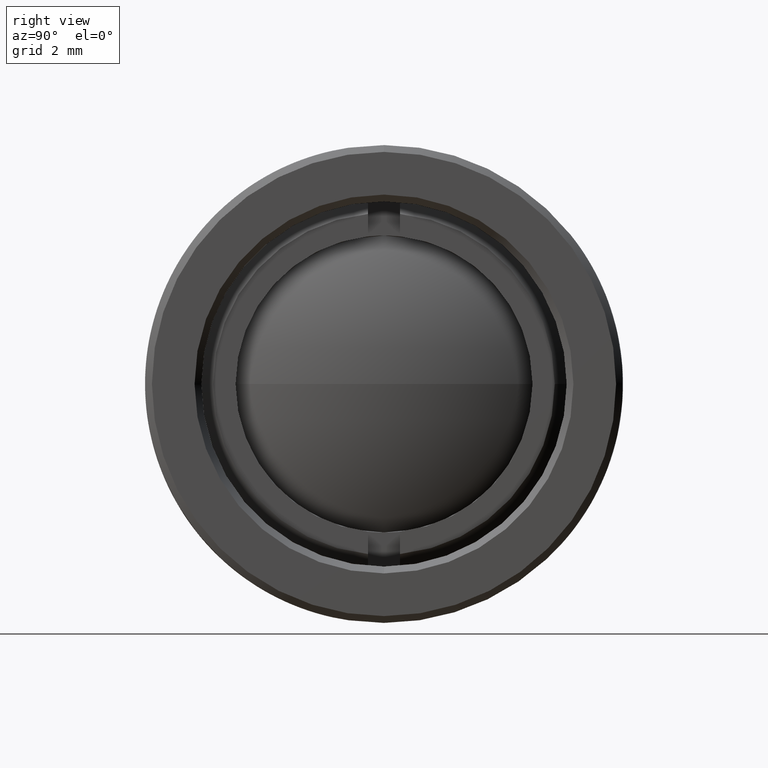
[diagram: clean part render]
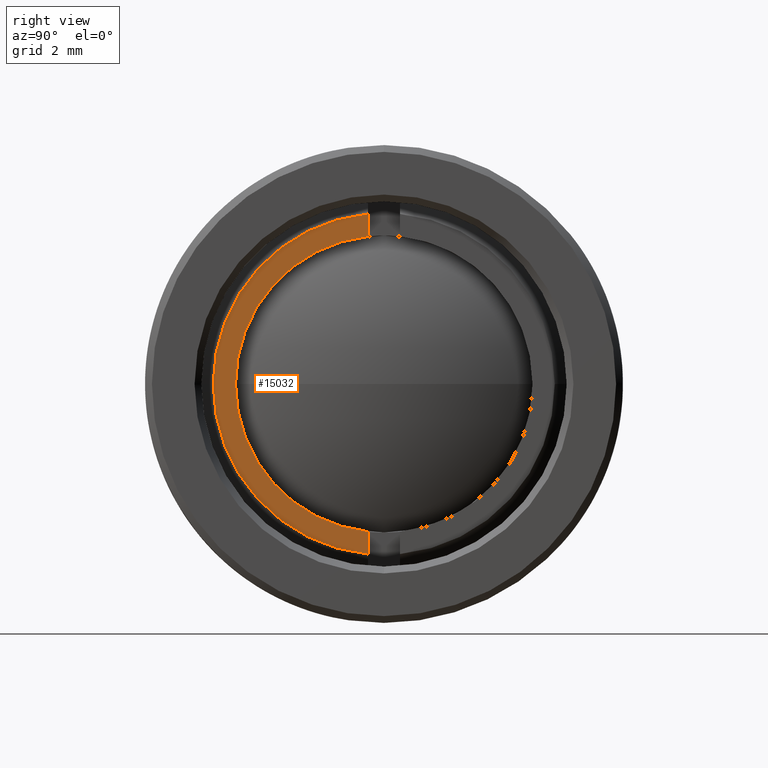
[diagram: same view with one face highlighted and labeled with its STEP entity id]
A machine part, right view. The second image highlights one B-rep face of the part: STEP entity #15032.
In plain terms, the highlighted planar face has unit normal (1, 0, 0).
Its self-contained STEP definition (entity closure, byte-faithful):
#261 = AXIS2_PLACEMENT_3D ( 'NONE', #7738, #17496, #9130 ) ;
#317 = CARTESIAN_POINT ( 'NONE',  ( 0.05755807924783912900, -2.480033383351934400E-017, -7.950724084117284600E-027 ) ) ;
#446 = ORIENTED_EDGE ( 'NONE', *, *, #7056, .T. ) ;
#558 = DIRECTION ( 'NONE',  ( 1.000000000000000000, 0.0000000000000000000, 0.0000000000000000000 ) ) ;
#1734 = DIRECTION ( 'NONE',  ( 0.0000000000000000000, -1.000000000000000000, 0.0000000000000000000 ) ) ;
#2038 = ORIENTED_EDGE ( 'NONE', *, *, #12440, .F. ) ;
#2474 = VECTOR ( 'NONE', #5460, 39.37007874015748100 ) ;
#2507 = CIRCLE ( 'NONE', #9004, 0.2501794919243116000 ) ;
#3240 = FACE_OUTER_BOUND ( 'NONE', #10064, .T. ) ;
#4470 = VERTEX_POINT ( 'NONE', #17113 ) ;
#4809 = PLANE ( 'NONE',  #261 ) ;
#5460 = DIRECTION ( 'NONE',  ( 0.0000000000000000000, 1.699281587288270400E-016, -1.000000000000000000 ) ) ;
#5540 = CIRCLE ( 'NONE', #14530, 0.2175000000000000000 ) ;
#5636 = VERTEX_POINT ( 'NONE', #12395 ) ;
#5803 = LINE ( 'NONE', #7194, #12794 ) ;
#6247 = EDGE_CURVE ( 'NONE', #5636, #4470, #5803, .T. ) ;
#7056 = EDGE_CURVE ( 'NONE', #5636, #16220, #2507, .T. ) ;
#7147 = VERTEX_POINT ( 'NONE', #13017 ) ;
#7194 = CARTESIAN_POINT ( 'NONE',  ( 0.05755807924783912900, -0.02350000000000002400, 0.2664657576500216200 ) ) ;
#7518 = DIRECTION ( 'NONE',  ( 1.000000000000000000, 0.0000000000000000000, 0.0000000000000000000 ) ) ;
#7738 = CARTESIAN_POINT ( 'NONE',  ( 0.05755807924783912900, -2.480033383351934400E-017, -7.950724084117284600E-027 ) ) ;
#8388 = VERTEX_POINT ( 'NONE', #13606 ) ;
#8691 = EDGE_CURVE ( 'NONE', #4470, #7147, #5540, .T. ) ;
#8942 = CARTESIAN_POINT ( 'NONE',  ( 0.05755807924783912900, -2.480033383351934400E-017, -7.950724084117284600E-027 ) ) ;
#9004 = AXIS2_PLACEMENT_3D ( 'NONE', #15866, #7518, #17270 ) ;
#9130 = DIRECTION ( 'NONE',  ( 0.0000000000000000000, -1.000000000000000000, 0.0000000000000000000 ) ) ;
#9240 = CIRCLE ( 'NONE', #9384, 0.2175000000000000000 ) ;
#9384 = AXIS2_PLACEMENT_3D ( 'NONE', #317, #10095, #1734 ) ;
#10064 = EDGE_LOOP ( 'NONE', ( #15452, #446, #2038, #15431, #17415 ) ) ;
#10095 = DIRECTION ( 'NONE',  ( 1.000000000000000000, 0.0000000000000000000, 0.0000000000000000000 ) ) ;
#10330 = LINE ( 'NONE', #16620, #2474 ) ;
#10344 = DIRECTION ( 'NONE',  ( 0.0000000000000000000, -1.000000000000000000, 0.0000000000000000000 ) ) ;
#10439 = EDGE_CURVE ( 'NONE', #7147, #8388, #9240, .T. ) ;
#12395 = CARTESIAN_POINT ( 'NONE',  ( 0.05755807924783912900, -0.02350000000000002800, 0.2490733389576385300 ) ) ;
#12440 = EDGE_CURVE ( 'NONE', #8388, #16220, #10330, .T. ) ;
#12794 = VECTOR ( 'NONE', #14153, 39.37007874015748100 ) ;
#13017 = CARTESIAN_POINT ( 'NONE',  ( 0.05755807924783912900, -0.2175000000000000300, -2.663606788940565100E-017 ) ) ;
#13488 = CARTESIAN_POINT ( 'NONE',  ( 0.05755807924783912900, -0.02350000000000002800, -0.2490733389576385300 ) ) ;
#13606 = CARTESIAN_POINT ( 'NONE',  ( 0.05755807924783912900, -0.02350000000000001700, -0.2162267328523464800 ) ) ;
#14153 = DIRECTION ( 'NONE',  ( 0.0000000000000000000, -1.699281587288270400E-016, -1.000000000000000000 ) ) ;
#14530 = AXIS2_PLACEMENT_3D ( 'NONE', #8942, #558, #10344 ) ;
#15032 = ADVANCED_FACE ( 'NONE', ( #3240 ), #4809, .T. ) ;
#15431 = ORIENTED_EDGE ( 'NONE', *, *, #10439, .F. ) ;
#15452 = ORIENTED_EDGE ( 'NONE', *, *, #6247, .F. ) ;
#15866 = CARTESIAN_POINT ( 'NONE',  ( 0.05755807924783912900, -2.480033383351934400E-017, -7.950724084117284600E-027 ) ) ;
#16220 = VERTEX_POINT ( 'NONE', #13488 ) ;
#16620 = CARTESIAN_POINT ( 'NONE',  ( 0.05755807924783912900, -0.02350000000000002400, -0.2664657576500216200 ) ) ;
#17113 = CARTESIAN_POINT ( 'NONE',  ( 0.05755807924783912900, -0.02349999999999991700, 0.2162267328523464800 ) ) ;
#17270 = DIRECTION ( 'NONE',  ( 0.0000000000000000000, -1.000000000000000000, 0.0000000000000000000 ) ) ;
#17415 = ORIENTED_EDGE ( 'NONE', *, *, #8691, .F. ) ;
#17496 = DIRECTION ( 'NONE',  ( 1.000000000000000000, 0.0000000000000000000, 0.0000000000000000000 ) ) ;